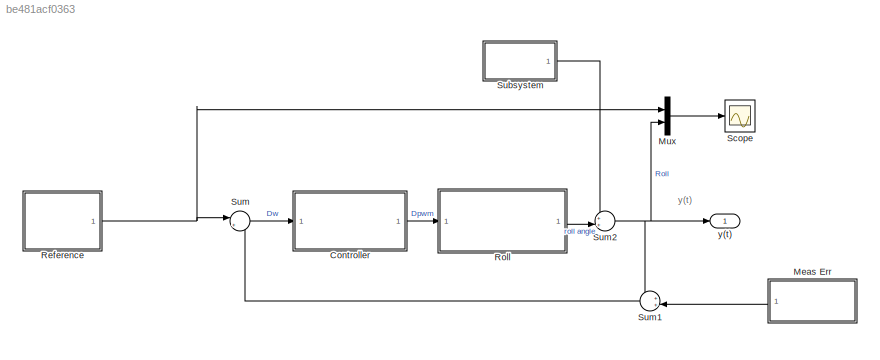
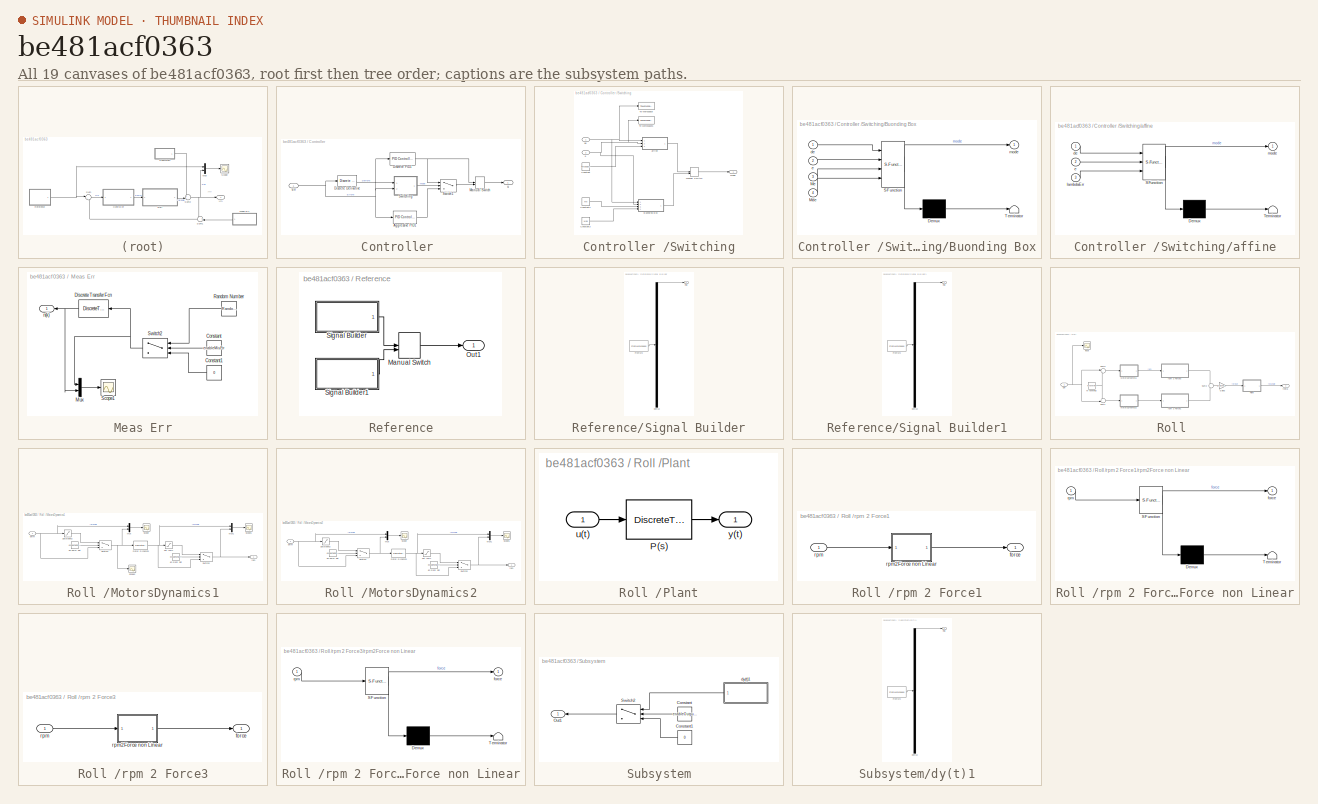
[diagram: thumbnail index - all 19 canvases of the model, root first then tree order]
MODEL slx_be481acf0363
KIND model
CONFIG AbsTol = auto
CONFIG EnableMultiTasking = on
CONFIG FixedStep = 0.021
CONFIG MaxStep = auto
CONFIG MinStep = auto
CONFIG RelTol = 1e-3
CONFIG SampleTimeConstraint = Unconstrained
CONFIG Solver = ode3
CONFIG SolverName = ode3
CONFIG StartTime = 0.0
CONFIG StopTime = 20
BLOCK [SubSystem] Controller 
  Ports = [1, 1]
  RequestExecContextInheritance = off
  Variant = off
BLOCK [Reference] Controller /Aggressive PID1  REF=simulink/Continuous/PID Controller
  Ports = [1, 1]
  SourceBlock = simulink/Continuous/PID Controller
  SourceProductBaseCode = SL
  SourceProductName = Simulink
  SourceType = PID 1dof
BLOCK [Reference] Controller /Discrete Derivative  REF=simulink/Discrete/Discrete Derivative
  Ports = [1, 1]
  SourceBlock = simulink/Discrete/Discrete Derivative
  SourceProductBaseCode = SL
  SourceProductName = Simulink
  SourceType = Discrete Derivative
BLOCK [Reference] Controller /Discrete PID1  REF=simulink/Continuous/PID Controller
  Ports = [1, 1]
  SourceBlock = simulink/Continuous/PID Controller
  SourceProductBaseCode = SL
  SourceProductName = Simulink
  SourceType = PID 1dof
BLOCK [ManualSwitch] Controller /Manual Switch
  CurrentSetting = 0
BLOCK [Switch] Controller /Switch1
  Criteria = u2 > Threshold
  InputSameDT = off
  SaturateOnIntegerOverflow = off
BLOCK [SubSystem] Controller /Switching
  Ports = [2, 1]
  RequestExecContextInheritance = off
  Variant = off
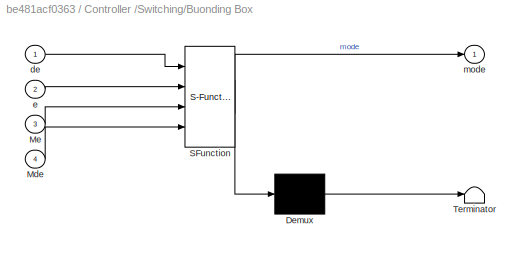
BLOCK [SubSystem] Controller /Switching/Buonding Box
  ErrorFcn = Stateflow.Translate.translate
  PermitHierarchicalResolution = ExplicitOnly
  Ports = [4, 1]
  RequestExecContextInheritance = off
  SFBlockType = MATLAB Function
  TreatAsAtomicUnit = on
  Variant = off
BLOCK [Demux] Controller /Switching/Buonding Box/ Demux 
  Outputs = 1
  Ports = [1, 1]
BLOCK [S-Function] Controller /Switching/Buonding Box/ SFunction 
  EnableBusSupport = on
  FunctionName = sf_sfun
  PortCounts = [4 2]
  Ports = [4, 2]
  SFcnIsStateOwnerBlock = off
  SFunctionDeploymentMode = off
  Tag = Stateflow S-Function rollDynamicsNonLinear 4
BLOCK [Terminator] Controller /Switching/Buonding Box/ Terminator 
BLOCK [Inport] Controller /Switching/Buonding Box/Mde
  IconDisplay = Port number
  Port = 4
BLOCK [Inport] Controller /Switching/Buonding Box/Me
  IconDisplay = Port number
  Port = 3
BLOCK [Inport] Controller /Switching/Buonding Box/de
  IconDisplay = Port number
BLOCK [Inport] Controller /Switching/Buonding Box/e
  IconDisplay = Port number
  Port = 2
BLOCK [Outport] Controller /Switching/Buonding Box/mode
  IconDisplay = Port number
BLOCK [Constant] Controller /Switching/Constant
  Value = lambdaErr
BLOCK [Constant] Controller /Switching/Constant2
  Value = Me
BLOCK [Constant] Controller /Switching/Constant3
  Value = Mde
BLOCK [ManualSwitch] Controller /Switching/Manual Switch
BLOCK [Outport] Controller /Switching/Mode
  IconDisplay = Port number
BLOCK [ToWorkspace] Controller /Switching/To Workspace
  FixptAsFi = on
  MaxDataPoints = inf
  Ports = [1]
  SampleTime = -1
  Save2DSignal = 3-D array (concatenate along third dimension)
  SaveFormat = Timeseries
  VariableName = derErr
BLOCK [ToWorkspace] Controller /Switching/To Workspace1
  FixptAsFi = on
  MaxDataPoints = inf
  Ports = [1]
  SampleTime = -1
  Save2DSignal = 3-D array (concatenate along third dimension)
  SaveFormat = Timeseries
  VariableName = Err
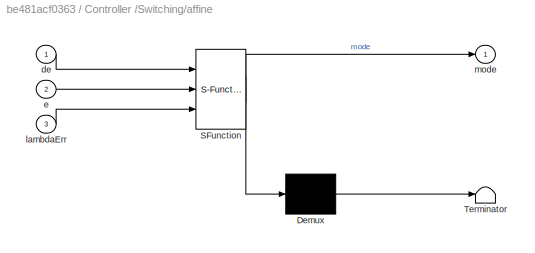
BLOCK [SubSystem] Controller /Switching/affine
  ErrorFcn = Stateflow.Translate.translate
  PermitHierarchicalResolution = ExplicitOnly
  Ports = [3, 1]
  RequestExecContextInheritance = off
  SFBlockType = MATLAB Function
  TreatAsAtomicUnit = on
  Variant = off
BLOCK [Demux] Controller /Switching/affine/ Demux 
  Outputs = 1
  Ports = [1, 1]
BLOCK [S-Function] Controller /Switching/affine/ SFunction 
  EnableBusSupport = on
  FunctionName = sf_sfun
  PortCounts = [3 2]
  Ports = [3, 2]
  SFcnIsStateOwnerBlock = off
  SFunctionDeploymentMode = off
  Tag = Stateflow S-Function rollDynamicsNonLinear 3
BLOCK [Terminator] Controller /Switching/affine/ Terminator 
BLOCK [Inport] Controller /Switching/affine/de
  IconDisplay = Port number
BLOCK [Inport] Controller /Switching/affine/e
  IconDisplay = Port number
  Port = 2
BLOCK [Inport] Controller /Switching/affine/lambdaErr
  IconDisplay = Port number
  Port = 3
BLOCK [Outport] Controller /Switching/affine/mode
  IconDisplay = Port number
BLOCK [Inport] Controller /Switching/de
  IconDisplay = Port number
BLOCK [Inport] Controller /Switching/e
  IconDisplay = Port number
  Port = 2
BLOCK [Inport] Controller /err 
  IconDisplay = Port number
BLOCK [Outport] Controller /u 
  IconDisplay = Port number
BLOCK [SubSystem] Meas Err
  Ports = [0, 1]
  RequestExecContextInheritance = off
  Variant = off
BLOCK [Constant] Meas Err/Constant
  Value = enableMisErr
BLOCK [Constant] Meas Err/Constant1
  Value = 0
BLOCK [DiscreteTransferFcn] Meas Err/Discrete Transfer Fcn
  Denominator = [1 -0.98]
  InputPortMap = u0
  Numerator = [0.02]
  Ports = [1, 1]
BLOCK [Mux] Meas Err/Mux
  DisplayOption = bar
  Inputs = 2
  Ports = [2, 1]
BLOCK [RandomNumber] Meas Err/Random Number
  SampleTime = Ts
  Variance = 0.3
BLOCK [Scope] Meas Err/Scope1
  NumInputPorts = 1
  Ports = [1]
  ScopeSpecificationString = Simulink.scopes.TimeScopeBlockCfg('CurrentConfiguration', extmgr.ConfigurationSet(extmgr.Configuration('Core','General UI',true),extmgr.Configuration('Core','Source UI',true),extmgr.Configuration('Sources','WiredSimulink',true,'DataLoggingSaveFormat','StructureWithTime','DataLoggingLimitDataPoints',true,'DataLoggingDecimation','1','DataLoggingDecimateData',true,'DataLoggingVariableName','ScopeData...<+1795ch>
BLOCK [Switch] Meas Err/Switch2
  Criteria = u2 > Threshold
  InputSameDT = off
  SampleTime = Ts
  SaturateOnIntegerOverflow = off
BLOCK [Outport] Meas Err/n(k)
  IconDisplay = Port number
BLOCK [Mux] Mux
  DisplayOption = bar
  Inputs = 2
  Ports = [2, 1]
BLOCK [SubSystem] Reference
  Ports = [0, 1]
  RequestExecContextInheritance = off
  Variant = off
BLOCK [ManualSwitch] Reference/Manual Switch
BLOCK [Outport] Reference/Out1
  IconDisplay = Port number
BLOCK [SubSystem] Reference/Signal Builder
  ClipboardFcn = sigbuilder_block('clipboard');
  CloseFcn = sigbuilder_block('close');
  ContinueFcn = sigbuilder_block('continue');
  CopyFcn = sigbuilder_block('copy');
  DeleteFcn = sigbuilder_block('delete');
  LoadFcn = sigbuilder_block('load');
  MaskHideContents = on
  ModelCloseFcn = sigbuilder_block('modelClose');
  NameChangeFcn = sigbuilder_block('namechange');
  OpenFcn = sigbuilder_block('open',[242.25 0 587.25 495.75 ]);
  PauseFcn = sigbuilder_block('pause');
  Ports = [0, 1]
  PreSaveFcn = sigbuilder_block('preSave');
  RequestExecContextInheritance = off
  StartFcn = sigbuilder_block('start');
  StopFcn = sigbuilder_block('stop');
  Tag = STV Subsys
  Variant = off
BLOCK [Demux] Reference/Signal Builder/Demux
  Outputs = 1
  Ports = [1, 1]
  Tag = STV Demux
BLOCK [FromWorkspace] Reference/Signal Builder/FromWs
  SampleTime = 0
  Tag = STV FromWs
  VariableName = tuvar
  ZeroCross = on
BLOCK [Outport] Reference/Signal Builder/Roll
  IconDisplay = Port number
  Tag = STV Outport
BLOCK [SubSystem] Reference/Signal Builder1
  ClipboardFcn = sigbuilder_block('clipboard');
  CloseFcn = sigbuilder_block('close');
  ContinueFcn = sigbuilder_block('continue');
  CopyFcn = sigbuilder_block('copy');
  DeleteFcn = sigbuilder_block('delete');
  LoadFcn = sigbuilder_block('load');
  MaskHideContents = on
  ModelCloseFcn = sigbuilder_block('modelClose');
  NameChangeFcn = sigbuilder_block('namechange');
  OpenFcn = sigbuilder_block('open',[246 0 579.75 488.25 ]);
  PauseFcn = sigbuilder_block('pause');
  Ports = [0, 1]
  PreSaveFcn = sigbuilder_block('preSave');
  RequestExecContextInheritance = off
  StartFcn = sigbuilder_block('start');
  StopFcn = sigbuilder_block('stop');
  Tag = STV Subsys
  Variant = off
BLOCK [Demux] Reference/Signal Builder1/Demux
  Outputs = 1
  Ports = [1, 1]
  Tag = STV Demux
BLOCK [FromWorkspace] Reference/Signal Builder1/FromWs
  SampleTime = 0
  Tag = STV FromWs
  VariableName = tuvar
  ZeroCross = on
BLOCK [Outport] Reference/Signal Builder1/Roll
  IconDisplay = Port number
  Tag = STV Outport
BLOCK [SubSystem] Roll 
  Ports = [1, 1]
  RequestExecContextInheritance = off
  Variant = off
BLOCK [Inport] Roll /Dw 
  IconDisplay = Port number
BLOCK [Gain] Roll /Gain3
  Gain = armLength
  OutDataTypeStr = Inherit: Inherit via internal rule
  ParamDataTypeStr = Inherit: Inherit via internal rule
  SampleTime = Ts
  SaturateOnIntegerOverflow = off
BLOCK [SubSystem] Roll /MotorsDynamics1
  Ports = [1, 1]
  RequestExecContextInheritance = off
  Variant = off
BLOCK [Mux] Roll /MotorsDynamics1/Mux
  DisplayOption = bar
  Inputs = 2
  Ports = [2, 1]
BLOCK [Mux] Roll /MotorsDynamics1/Mux1
  DisplayOption = bar
  Inputs = 2
  Ports = [2, 1]
BLOCK [Saturate] Roll /MotorsDynamics1/Saturation2
  InputPortMap = u0
  LowerLimit = pwmLowerBound
  Ports = [1, 1]
  SampleTime = Ts
  UpperLimit = pwmUpperBound
BLOCK [Scope] Roll /MotorsDynamics1/Scope
  NumInputPorts = 1
  Ports = [1]
  ScopeSpecificationString = Simulink.scopes.TimeScopeBlockCfg('CurrentConfiguration', extmgr.ConfigurationSet(extmgr.Configuration('Core','General UI',true),extmgr.Configuration('Core','Source UI',true),extmgr.Configuration('Sources','WiredSimulink',true,'DataLoggingVariableName','ScopeData3','DataLoggingSaveFormat','StructureWithTime','DataLoggingLimitDataPoints',true,'DataLoggingDecimation','1','DataLoggingDecimateData',tr...<+1799ch>
BLOCK [Scope] Roll /MotorsDynamics1/Scope1
  NumInputPorts = 1
  Ports = [1]
  ScopeSpecificationString = Simulink.scopes.TimeScopeBlockCfg('CurrentConfiguration', extmgr.ConfigurationSet(extmgr.Configuration('Core','General UI',true),extmgr.Configuration('Core','Source UI',true),extmgr.Configuration('Sources','WiredSimulink',true,'DataLoggingVariableName','ScopeData4','DataLoggingSaveFormat','StructureWithTime','DataLoggingLimitDataPoints',true,'DataLoggingDecimation','1','DataLoggingDecimateData',tr...<+1787ch>
BLOCK [Scope] Roll /MotorsDynamics1/Scope2
  NumInputPorts = 1
  Ports = [1]
  ScopeSpecificationString = Simulink.scopes.TimeScopeBlockCfg('CurrentConfiguration', extmgr.ConfigurationSet(extmgr.Configuration('Core','General UI',true),extmgr.Configuration('Core','Source UI',true),extmgr.Configuration('Sources','WiredSimulink',true,'DataLoggingVariableName','ScopeData1','DataLoggingSaveFormat','StructureWithTime','DataLoggingLimitDataPoints',true,'DataLoggingDecimation','1','DataLoggingDecimateData',tr...<+1802ch>
BLOCK [Switch] Roll /MotorsDynamics1/Switch1
  Criteria = u2 > Threshold
  InputSameDT = off
  SampleTime = Ts
  SaturateOnIntegerOverflow = off
BLOCK [Switch] Roll /MotorsDynamics1/Switch2
  Criteria = u2 > Threshold
  InputSameDT = off
  SampleTime = Ts
  SaturateOnIntegerOverflow = off
BLOCK [Constant] Roll /MotorsDynamics1/en Rpm Sat
  SampleTime = Ts
  Value = enableRpmSaturation
BLOCK [Constant] Roll /MotorsDynamics1/en pwm Sat
  SampleTime = Ts
  Value = enablePwmSaturation
BLOCK [DiscreteTransferFcn] Roll /MotorsDynamics1/motor Dynamics
  Denominator = motor_den_tf_discrete
  InputPortMap = u0
  Numerator = motor_num_tf_discrete
  Ports = [1, 1]
  SampleTime = Ts
BLOCK [Inport] Roll /MotorsDynamics1/pwm
  IconDisplay = Port number
BLOCK [Outport] Roll /MotorsDynamics1/rpm
  IconDisplay = Port number
BLOCK [Saturate] Roll /MotorsDynamics1/sat rom1
  InputPortMap = u0
  LowerLimit = rpmLowerBound
  Ports = [1, 1]
  SampleTime = Ts
  UpperLimit = rpmUpperBound
BLOCK [SubSystem] Roll /MotorsDynamics2
  Ports = [1, 1]
  RequestExecContextInheritance = off
  Variant = off
BLOCK [Mux] Roll /MotorsDynamics2/Mux
  DisplayOption = bar
  Inputs = 2
  Ports = [2, 1]
BLOCK [Mux] Roll /MotorsDynamics2/Mux1
  DisplayOption = bar
  Inputs = 2
  Ports = [2, 1]
BLOCK [Saturate] Roll /MotorsDynamics2/Saturation2
  InputPortMap = u0
  LowerLimit = pwmLowerBound
  Ports = [1, 1]
  SampleTime = Ts
  UpperLimit = pwmUpperBound
BLOCK [Scope] Roll /MotorsDynamics2/Scope
  NumInputPorts = 1
  Ports = [1]
  ScopeSpecificationString = Simulink.scopes.TimeScopeBlockCfg('CurrentConfiguration', extmgr.ConfigurationSet(extmgr.Configuration('Core','General UI',true),extmgr.Configuration('Core','Source UI',true),extmgr.Configuration('Sources','WiredSimulink',true,'DataLoggingVariableName','ScopeData3','DataLoggingSaveFormat','StructureWithTime','DataLoggingLimitDataPoints',true,'DataLoggingDecimation','1','DataLoggingDecimateData',tr...<+1799ch>
BLOCK [Scope] Roll /MotorsDynamics2/Scope1
  NumInputPorts = 1
  Ports = [1]
  ScopeSpecificationString = Simulink.scopes.TimeScopeBlockCfg('CurrentConfiguration', extmgr.ConfigurationSet(extmgr.Configuration('Core','General UI',true),extmgr.Configuration('Core','Source UI',true),extmgr.Configuration('Sources','WiredSimulink',true,'DataLoggingVariableName','ScopeData4','DataLoggingSaveFormat','StructureWithTime','DataLoggingLimitDataPoints',true,'DataLoggingDecimation','1','DataLoggingDecimateData',tr...<+1795ch>
BLOCK [Switch] Roll /MotorsDynamics2/Switch1
  Criteria = u2 > Threshold
  InputSameDT = off
  SampleTime = Ts
  SaturateOnIntegerOverflow = off
BLOCK [Switch] Roll /MotorsDynamics2/Switch2
  Criteria = u2 > Threshold
  InputSameDT = off
  SampleTime = Ts
  SaturateOnIntegerOverflow = off
BLOCK [Constant] Roll /MotorsDynamics2/en Rpm Sat
  SampleTime = Ts
  Value = enableRpmSaturation
BLOCK [Constant] Roll /MotorsDynamics2/en pwm Sat
  SampleTime = Ts
  Value = enablePwmSaturation
BLOCK [DiscreteTransferFcn] Roll /MotorsDynamics2/motor Dynamics
  Denominator = motor_den_tf_discrete
  InputPortMap = u0
  Numerator = motor_num_tf_discrete
  Ports = [1, 1]
  SampleTime = Ts
BLOCK [Inport] Roll /MotorsDynamics2/pwm
  IconDisplay = Port number
BLOCK [Outport] Roll /MotorsDynamics2/rpm
  IconDisplay = Port number
BLOCK [Saturate] Roll /MotorsDynamics2/sat rom1
  InputPortMap = u0
  LowerLimit = rpmLowerBound
  Ports = [1, 1]
  SampleTime = Ts
  UpperLimit = rpmUpperBound
BLOCK [SubSystem] Roll /Plant
  Ports = [1, 1]
  RequestExecContextInheritance = off
  Variant = off
BLOCK [DiscreteTransferFcn] Roll /Plant/P(s)
  Denominator = roll_den_tf_discrete
  InputPortMap = u0
  Numerator = roll_num_tf_discrete
  Ports = [1, 1]
  SampleTime = Ts
BLOCK [Inport] Roll /Plant/u(t)
  IconDisplay = Port number
BLOCK [Outport] Roll /Plant/y(t)
  IconDisplay = Port number
BLOCK [Sum] Roll /Sum1
  IconShape = round
  InputSameDT = off
  Inputs = +-|
  OutDataTypeStr = Inherit: Inherit via internal rule
  Ports = [2, 1]
  SaturateOnIntegerOverflow = off
BLOCK [Sum] Roll /Sum2
  IconShape = round
  InputSameDT = off
  Inputs = +|-
  OutDataTypeStr = Inherit: Inherit via internal rule
  Ports = [2, 1]
  SaturateOnIntegerOverflow = off
BLOCK [Sum] Roll /Sum3
  IconShape = round
  InputSameDT = off
  Inputs = |++
  OutDataTypeStr = Inherit: Inherit via internal rule
  Ports = [2, 1]
  SaturateOnIntegerOverflow = off
BLOCK [Constant] Roll /W hovering
  SampleTime = Ts
  Value = Whovering
BLOCK [Scope] Roll /input
  NumInputPorts = 1
  Ports = [1]
  ScopeSpecificationString = Simulink.scopes.TimeScopeBlockCfg('CurrentConfiguration', extmgr.ConfigurationSet(extmgr.Configuration('Core','General UI',true),extmgr.Configuration('Core','Source UI',true),extmgr.Configuration('Sources','WiredSimulink',true,'DataLoggingVariableName','ScopeData2','DataLoggingSaveFormat','StructureWithTime','DataLoggingLimitDataPoints',true,'DataLoggingDecimation','1','DataLoggingDecimateData',tr...<+1790ch>
BLOCK [SubSystem] Roll /rpm 2 Force1
  Ports = [1, 1]
  RequestExecContextInheritance = off
  Variant = off
BLOCK [Outport] Roll /rpm 2 Force1/force
  IconDisplay = Port number
BLOCK [Inport] Roll /rpm 2 Force1/rpm
  IconDisplay = Port number
BLOCK [SubSystem] Roll /rpm 2 Force1/rpm2Force non Linear
  ErrorFcn = Stateflow.Translate.translate
  PermitHierarchicalResolution = ExplicitOnly
  Ports = [1, 1]
  RequestExecContextInheritance = off
  SFBlockType = MATLAB Function
  TreatAsAtomicUnit = on
  Variant = off
BLOCK [Demux] Roll /rpm 2 Force1/rpm2Force non Linear/ Demux 
  Outputs = 1
  Ports = [1, 1]
BLOCK [S-Function] Roll /rpm 2 Force1/rpm2Force non Linear/ SFunction 
  EnableBusSupport = on
  FunctionName = sf_sfun
  PortCounts = [1 2]
  Ports = [1, 2]
  SFcnIsStateOwnerBlock = off
  SFunctionDeploymentMode = off
  Tag = Stateflow S-Function rollDynamicsNonLinear 1
BLOCK [Terminator] Roll /rpm 2 Force1/rpm2Force non Linear/ Terminator 
BLOCK [Outport] Roll /rpm 2 Force1/rpm2Force non Linear/force
  IconDisplay = Port number
BLOCK [Inport] Roll /rpm 2 Force1/rpm2Force non Linear/rpm
  IconDisplay = Port number
BLOCK [SubSystem] Roll /rpm 2 Force3
  Ports = [1, 1]
  RequestExecContextInheritance = off
  Variant = off
BLOCK [Outport] Roll /rpm 2 Force3/force
  IconDisplay = Port number
BLOCK [Inport] Roll /rpm 2 Force3/rpm
  IconDisplay = Port number
BLOCK [SubSystem] Roll /rpm 2 Force3/rpm2Force non Linear
  ErrorFcn = Stateflow.Translate.translate
  PermitHierarchicalResolution = ExplicitOnly
  Ports = [1, 1]
  RequestExecContextInheritance = off
  SFBlockType = MATLAB Function
  TreatAsAtomicUnit = on
  Variant = off
BLOCK [Demux] Roll /rpm 2 Force3/rpm2Force non Linear/ Demux 
  Outputs = 1
  Ports = [1, 1]
BLOCK [S-Function] Roll /rpm 2 Force3/rpm2Force non Linear/ SFunction 
  EnableBusSupport = on
  FunctionName = sf_sfun
  PortCounts = [1 2]
  Ports = [1, 2]
  SFcnIsStateOwnerBlock = off
  SFunctionDeploymentMode = off
  Tag = Stateflow S-Function rollDynamicsNonLinear 2
BLOCK [Terminator] Roll /rpm 2 Force3/rpm2Force non Linear/ Terminator 
BLOCK [Outport] Roll /rpm 2 Force3/rpm2Force non Linear/force
  IconDisplay = Port number
BLOCK [Inport] Roll /rpm 2 Force3/rpm2Force non Linear/rpm
  IconDisplay = Port number
BLOCK [Outport] Roll /theta 
  IconDisplay = Port number
BLOCK [Scope] Scope
  NumInputPorts = 1
  Ports = [1]
  ScopeSpecificationString = Simulink.scopes.TimeScopeBlockCfg('CurrentConfiguration', extmgr.ConfigurationSet(extmgr.Configuration('Core','General UI',true),extmgr.Configuration('Core','Source UI',true),extmgr.Configuration('Sources','WiredSimulink',true,'DataLoggingSaveFormat','StructureWithTime','DataLoggingLimitDataPoints',true,'DataLoggingDecimation','1','DataLoggingDecimateData',true),extmgr.Configuration('Visuals','Tim...<+1746ch>
BLOCK [SubSystem] Subsystem
  Ports = [0, 1]
  RequestExecContextInheritance = off
  Variant = off
BLOCK [Constant] Subsystem/Constant
  SampleTime = Ts
  Value = enableOutputPert
BLOCK [Constant] Subsystem/Constant1
  Value = 0
BLOCK [Outport] Subsystem/Out1
  IconDisplay = Port number
BLOCK [Switch] Subsystem/Switch2
  Criteria = u2 > Threshold
  InputSameDT = off
  SampleTime = Ts
  SaturateOnIntegerOverflow = off
BLOCK [SubSystem] Subsystem/dy(t)1
  ClipboardFcn = sigbuilder_block('clipboard');
  CloseFcn = sigbuilder_block('close');
  ContinueFcn = sigbuilder_block('continue');
  CopyFcn = sigbuilder_block('copy');
  DeleteFcn = sigbuilder_block('delete');
  LoadFcn = sigbuilder_block('load');
  MaskHideContents = on
  ModelCloseFcn = sigbuilder_block('modelClose');
  NameChangeFcn = sigbuilder_block('namechange');
  OpenFcn = sigbuilder_block('open',[234.75 0 602.25 495.75 ]);
  PauseFcn = sigbuilder_block('pause');
  Ports = [0, 1]
  PreSaveFcn = sigbuilder_block('preSave');
  RequestExecContextInheritance = off
  StartFcn = sigbuilder_block('start');
  StopFcn = sigbuilder_block('stop');
  Tag = STV Subsys
  Variant = off
BLOCK [Demux] Subsystem/dy(t)1/Demux
  Outputs = 1
  Ports = [1, 1]
  Tag = STV Demux
BLOCK [FromWorkspace] Subsystem/dy(t)1/FromWs
  SampleTime = 0
  Tag = STV FromWs
  VariableName = tuvar
  ZeroCross = on
BLOCK [Outport] Subsystem/dy(t)1/Roll
  IconDisplay = Port number
  Tag = STV Outport
BLOCK [Sum] Sum
  IconShape = round
  InputSameDT = off
  Inputs = |+-
  OutDataTypeStr = Inherit: Inherit via internal rule
  Ports = [2, 1]
  SaturateOnIntegerOverflow = off
BLOCK [Sum] Sum1
  IconShape = round
  InputSameDT = off
  Inputs = ++|
  OutDataTypeStr = Inherit: Inherit via internal rule
  Ports = [2, 1]
  SaturateOnIntegerOverflow = off
BLOCK [Sum] Sum2
  IconShape = round
  InputSameDT = off
  Inputs = ++|
  OutDataTypeStr = Inherit: Inherit via internal rule
  Ports = [2, 1]
  SaturateOnIntegerOverflow = off
BLOCK [Outport] y(t)
  IconDisplay = Port number
ANNOTATION (root): y(t)
LINE Controller /Aggressive PID1:1 -> Controller /Switch1:3
LINE Controller /Discrete Derivative:1 -> Controller /Switching:1
NET Controller /Discrete PID1:1 -> Controller /Manual Switch:1, Controller /Switch1:1
LINE Controller /Manual Switch:1 -> Controller /u :1
LINE Controller /Switch1:1 -> Controller /Manual Switch:2
LINE Controller /Switching/Buonding Box:1 -> Controller /Switching/Manual Switch:2
LINE Controller /Switching/Constant2:1 -> Controller /Switching/Buonding Box:3
LINE Controller /Switching/Constant3:1 -> Controller /Switching/Buonding Box:4
LINE Controller /Switching/Constant:1 -> Controller /Switching/affine:3
LINE Controller /Switching/Manual Switch:1 -> Controller /Switching/Mode:1
LINE Controller /Switching/affine:1 -> Controller /Switching/Manual Switch:1
NET Controller /Switching/de:1 -> Controller /Switching/Buonding Box:1, Controller /Switching/To Workspace:1, Controller /Switching/affine:1
NET Controller /Switching/e:1 -> Controller /Switching/Buonding Box:2, Controller /Switching/To Workspace1:1, Controller /Switching/affine:2
LINE Controller /Switching:1 -> Controller /Switch1:2
NET Controller /err :1 -> Controller /Aggressive PID1:1, Controller /Discrete Derivative:1, Controller /Discrete PID1:1, Controller /Switching:2
LINE Controller :1 -> Roll :1
LINE Meas Err/Constant1:1 -> Meas Err/Switch2:3
LINE Meas Err/Constant:1 -> Meas Err/Switch2:2
NET Meas Err/Discrete Transfer Fcn:1 -> Meas Err/Mux:2, Meas Err/n(k):1
LINE Meas Err/Mux:1 -> Meas Err/Scope1:1
LINE Meas Err/Random Number:1 -> Meas Err/Switch2:1
NET Meas Err/Switch2:1 -> Meas Err/Discrete Transfer Fcn:1, Meas Err/Mux:1
LINE Meas Err:1 -> Sum1:2
LINE Mux:1 -> Scope:1
LINE Reference/Manual Switch:1 -> Reference/Out1:1
LINE Reference/Signal Builder1:1 -> Reference/Manual Switch:2
LINE Reference/Signal Builder:1 -> Reference/Manual Switch:1
NET Reference:1 -> Mux:1, Sum:1
NET Roll /Dw :1 -> Roll /Sum1:2, Roll /Sum3:1, Roll /input:1
LINE Roll /Gain3:1 -> Roll /Plant:1
LINE Roll /MotorsDynamics1/Mux1:1 -> Roll /MotorsDynamics1/Scope1:1
LINE Roll /MotorsDynamics1/Mux:1 -> Roll /MotorsDynamics1/Scope:1
LINE Roll /MotorsDynamics1/Saturation2:1 -> Roll /MotorsDynamics1/Switch1:1
NET Roll /MotorsDynamics1/Switch1:1 -> Roll /MotorsDynamics1/Mux:2, Roll /MotorsDynamics1/Scope2:1, Roll /MotorsDynamics1/motor Dynamics:1
NET Roll /MotorsDynamics1/Switch2:1 -> Roll /MotorsDynamics1/Mux1:2, Roll /MotorsDynamics1/rpm:1
LINE Roll /MotorsDynamics1/en Rpm Sat:1 -> Roll /MotorsDynamics1/Switch2:2
LINE Roll /MotorsDynamics1/en pwm Sat:1 -> Roll /MotorsDynamics1/Switch1:2
NET Roll /MotorsDynamics1/motor Dynamics:1 -> Roll /MotorsDynamics1/Mux1:1, Roll /MotorsDynamics1/Switch2:3, Roll /MotorsDynamics1/sat rom1:1
NET Roll /MotorsDynamics1/pwm:1 -> Roll /MotorsDynamics1/Mux:1, Roll /MotorsDynamics1/Saturation2:1, Roll /MotorsDynamics1/Switch1:3
LINE Roll /MotorsDynamics1/sat rom1:1 -> Roll /MotorsDynamics1/Switch2:1
LINE Roll /MotorsDynamics1:1 -> Roll /rpm 2 Force3:1
LINE Roll /MotorsDynamics2/Mux1:1 -> Roll /MotorsDynamics2/Scope1:1
LINE Roll /MotorsDynamics2/Mux:1 -> Roll /MotorsDynamics2/Scope:1
LINE Roll /MotorsDynamics2/Saturation2:1 -> Roll /MotorsDynamics2/Switch1:1
NET Roll /MotorsDynamics2/Switch1:1 -> Roll /MotorsDynamics2/Mux:2, Roll /MotorsDynamics2/motor Dynamics:1
NET Roll /MotorsDynamics2/Switch2:1 -> Roll /MotorsDynamics2/Mux1:2, Roll /MotorsDynamics2/rpm:1
LINE Roll /MotorsDynamics2/en Rpm Sat:1 -> Roll /MotorsDynamics2/Switch2:2
LINE Roll /MotorsDynamics2/en pwm Sat:1 -> Roll /MotorsDynamics2/Switch1:2
NET Roll /MotorsDynamics2/motor Dynamics:1 -> Roll /MotorsDynamics2/Mux1:1, Roll /MotorsDynamics2/Switch2:3, Roll /MotorsDynamics2/sat rom1:1
NET Roll /MotorsDynamics2/pwm:1 -> Roll /MotorsDynamics2/Mux:1, Roll /MotorsDynamics2/Saturation2:1, Roll /MotorsDynamics2/Switch1:3
LINE Roll /MotorsDynamics2/sat rom1:1 -> Roll /MotorsDynamics2/Switch2:1
LINE Roll /MotorsDynamics2:1 -> Roll /rpm 2 Force1:1
LINE Roll /Plant/P(s):1 -> Roll /Plant/y(t):1
LINE Roll /Plant/u(t):1 -> Roll /Plant/P(s):1
LINE Roll /Plant:1 -> Roll /theta :1
LINE Roll /Sum1:1 -> Roll /MotorsDynamics2:1
LINE Roll /Sum2:1 -> Roll /Gain3:1
LINE Roll /Sum3:1 -> Roll /MotorsDynamics1:1
NET Roll /W hovering:1 -> Roll /Sum1:1, Roll /Sum3:2
LINE Roll /rpm 2 Force1/rpm2Force non Linear:1 -> Roll /rpm 2 Force1/force:1
LINE Roll /rpm 2 Force1/rpm:1 -> Roll /rpm 2 Force1/rpm2Force non Linear:1
LINE Roll /rpm 2 Force1:1 -> Roll /Sum2:2
LINE Roll /rpm 2 Force3/rpm2Force non Linear:1 -> Roll /rpm 2 Force3/force:1
LINE Roll /rpm 2 Force3/rpm:1 -> Roll /rpm 2 Force3/rpm2Force non Linear:1
LINE Roll /rpm 2 Force3:1 -> Roll /Sum2:1
LINE Roll :1 -> Sum2:2
LINE Subsystem/Constant1:1 -> Subsystem/Switch2:3
LINE Subsystem/Constant:1 -> Subsystem/Switch2:2
LINE Subsystem/Switch2:1 -> Subsystem/Out1:1
LINE Subsystem/dy(t)1:1 -> Subsystem/Switch2:1
LINE Subsystem:1 -> Sum2:1
LINE Sum1:1 -> Sum:2
NET Sum2:1 -> Mux:2, Sum1:1, y(t):1
LINE Sum:1 -> Controller :1
note: NET lines group one-source signal fan-out (src -> all destinations, sorted); 1:1 wires keep LINE
CHART Roll
/rpm 2 Force1/rpm2Force non Linear states=1 transitions=1
  STATE_LABEL 'eML_blk_kernel()'
  STATE_LABEL 'SCRIPT:\nfunction force = fcn(rpm)\n%#codegen\n\n% Computing Thrust force. It is the result of vertical forces acting on all\n% blade elements of one propeller\nRadius = 0.115; % m\nRadius_in = 9; % in\nCt = 0.18;\nrho = 1.225; % kg/m^3\nAprop = pi*Radius^2;\n\n% Convert to RPM\nThrust_newton = Ct*rho*Aprop*(rpm)^2*Radius^2;\nThrust_kg = Thrust_newton/9.81;\n\n\nforce = Thrust_newton;'
CHART Roll
/rpm 2 Force3/rpm2Force non Linear states=1 transitions=1
  STATE_LABEL 'eML_blk_kernel()'
  STATE_LABEL 'SCRIPT:\nfunction force = fcn(rpm)\n%#codegen\n\n% Computing Thrust force. It is the result of vertical forces acting on all\n% blade elements of one propeller\nRadius = 0.115; % m\nRadius_in = 9; % in\nCt = 0.18;\nrho = 1.225; % kg/m^3\nAprop = pi*Radius^2;\n\n% Convert to RPM\nThrust_newton = Ct*rho*Aprop*(rpm)^2*Radius^2;\nThrust_kg = Thrust_newton/9.81;\n\n\nforce = Thrust_newton;'
CHART Controller
/Switching/affine states=1 transitions=1
  STATE_LABEL 'eML_blk_kernel()'
  STATE_LABEL 'SCRIPT:\nfunction mode = checkCondE(de,e,lambdaErr)\n%#codegen\nmode = 1;\nif de >= 0 && e >= 0\n    % primo quadrante\n    if de - lambdaErr/e <= 0\n    %if de <= 20 && e <= 6\n         mode = 1;\n    else\n        mode = -1;\n    end\nelseif de <= 0 && e >= 0\n    % second quadrante\n    if de + lambdaErr/e <= 0\n    %if de <= -10 && e <= 10\n         mode = 1;\n    else\n        mode = -1;\n    end\nelseif de >= 0...<+255ch>'
CHART Controller
/Switching/Buonding Box states=1 transitions=1
  STATE_LABEL 'eML_blk_kernel()'
  STATE_LABEL 'SCRIPT:\nfunction mode = checkCondE(de,e,Me,Mde)\n%#codegen\nmode = 1;\nif de >= 0 && e >= 0\n    % primo quadrante\n    if de <= Mde && e <= Me\n         mode = 1;\n    else\n        mode = -1;\n    end\nelseif de <= 0 && e >= 0\n    % second quadrante\n    if de >= -Mde && e <= Me\n         mode = 1;\n    else\n        mode = -1;\n    end\nelseif de >= 0 && e <= 0\n    % quarto quadrante\n    if de <= Mde && e >= -...<+193ch>'
